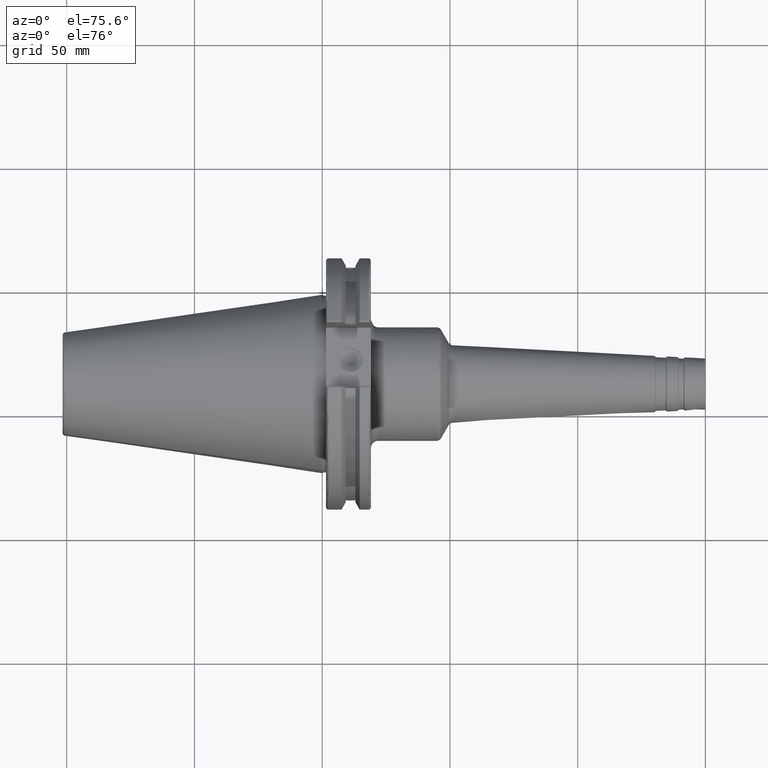
[diagram: clean part render]
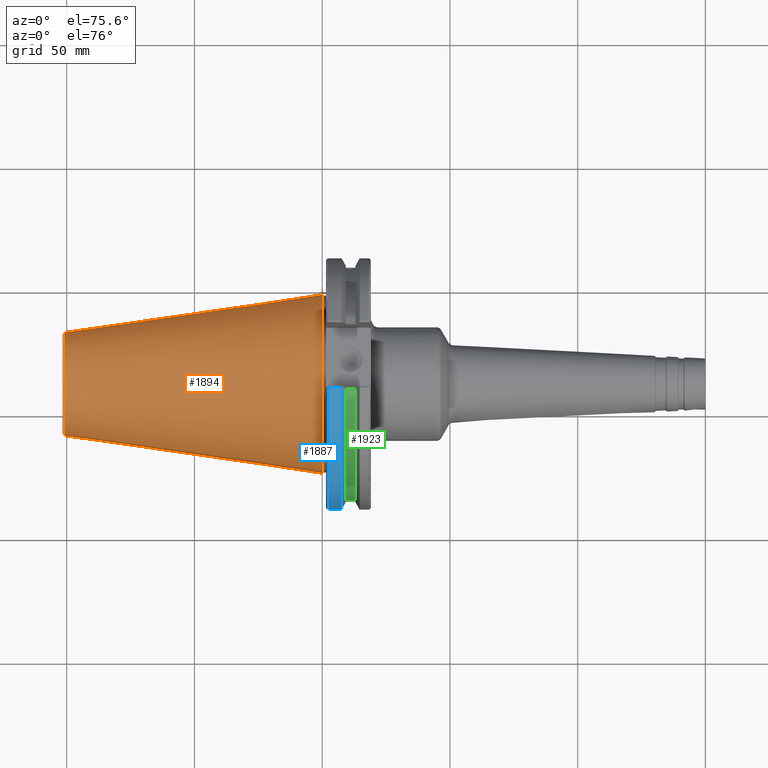
[diagram: same view with three faces highlighted in distinct colors, each labeled with its STEP entity id]
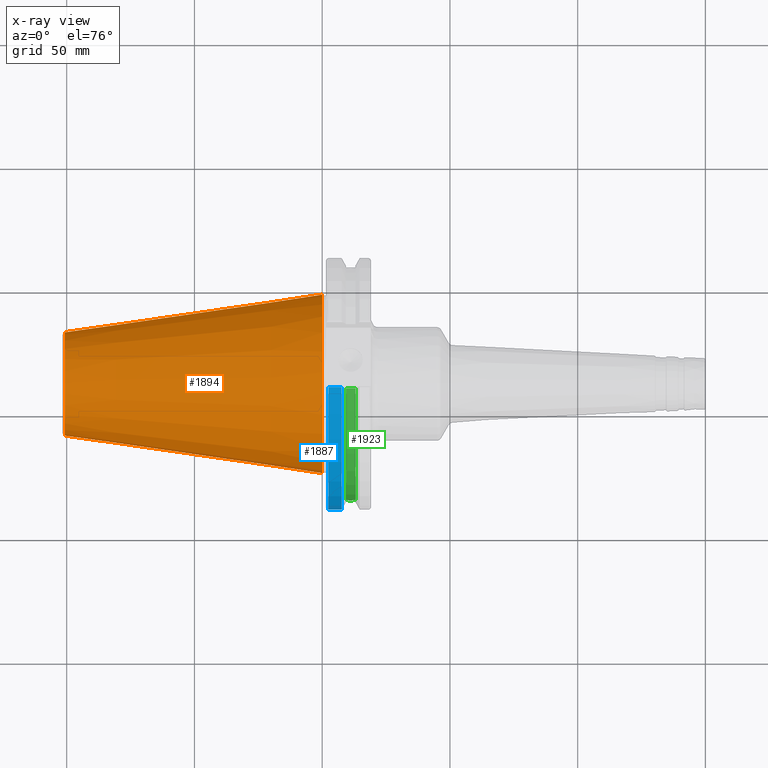
[diagram: x-ray of the same camera — body ghosted, the three highlighted faces saturated]
A machine part, auxiliary view with three faces highlighted in distinct colors.
The next image is the same camera in x-ray (body ghosted, the three faces saturated) — at least one of them is partly hidden behind the body in this view.
Their STEP definitions:

[orange] entity #1894 — the highlighted conical surface has half-angle 8.297 deg.
#165=CONICAL_SURFACE('',#2133,27.5166666666666,0.14481249823894);
#245=FACE_OUTER_BOUND('',#366,.T.);
#366=EDGE_LOOP('',(#1641,#1642,#1643,#1644,#1645));
#483=LINE('',#3727,#586);
#586=VECTOR('',#2637,27.5166666666666);
#711=CIRCLE('',#2127,20.233121911427);
#712=CIRCLE('',#2128,20.233121911427);
#716=CIRCLE('',#2134,34.925);
#906=VERTEX_POINT('',#3714);
#907=VERTEX_POINT('',#3715);
#910=VERTEX_POINT('',#3725);
#1167=EDGE_CURVE('',#906,#907,#711,.T.);
#1168=EDGE_CURVE('',#907,#906,#712,.T.);
#1172=EDGE_CURVE('',#910,#910,#716,.T.);
#1173=EDGE_CURVE('',#910,#907,#483,.T.);
#1641=ORIENTED_EDGE('',*,*,#1172,.F.);
#1642=ORIENTED_EDGE('',*,*,#1173,.T.);
#1643=ORIENTED_EDGE('',*,*,#1167,.F.);
#1644=ORIENTED_EDGE('',*,*,#1168,.F.);
#1645=ORIENTED_EDGE('',*,*,#1173,.F.);
#1894=ADVANCED_FACE('',(#245),#165,.T.);
#2127=AXIS2_PLACEMENT_3D('',#3716,#2621,#2622);
#2128=AXIS2_PLACEMENT_3D('',#3717,#2623,#2624);
#2133=AXIS2_PLACEMENT_3D('',#3724,#2633,#2634);
#2134=AXIS2_PLACEMENT_3D('',#3726,#2635,#2636);
#2621=DIRECTION('center_axis',(-1.,0.,0.));
#2622=DIRECTION('ref_axis',(0.,-1.,3.06161699786838E-17));
#2623=DIRECTION('center_axis',(-1.,0.,0.));
#2624=DIRECTION('ref_axis',(0.,-1.,3.06161699786838E-17));
#2633=DIRECTION('center_axis',(1.,0.,0.));
#2634=DIRECTION('ref_axis',(0.,1.,0.));
#2635=DIRECTION('center_axis',(1.,0.,0.));
#2636=DIRECTION('ref_axis',(0.,0.,-1.));
#2637=DIRECTION('',(-0.989532981063281,0.144306893071729,1.76724974695192E-17));
#3714=CARTESIAN_POINT('',(-100.744306893072,-2.47784279855872E-15,20.233121911427));
#3715=CARTESIAN_POINT('',(-100.744306893072,-20.233121911427,-2.47784279855872E-15));
#3716=CARTESIAN_POINT('Origin',(-100.744306893072,0.,-3.09730349819841E-15));
#3717=CARTESIAN_POINT('Origin',(-100.744306893072,0.,-3.09730349819841E-15));
#3724=CARTESIAN_POINT('Origin',(-50.8,0.,0.));
#3725=CARTESIAN_POINT('',(-8.88178419700125E-15,-34.925,-4.27707894602213E-15));
#3726=CARTESIAN_POINT('Origin',(0.,0.,0.));
#3727=CARTESIAN_POINT('',(-50.8,-27.5166666666666,-3.3698197756538E-15));

[blue] entity #1887 — the highlighted cylindrical surface (partial cylindrical patch) has radius 49.2125 mm, axis along (1, 0, 0).
#238=FACE_OUTER_BOUND('',#356,.T.);
#356=EDGE_LOOP('',(#1600,#1601,#1602,#1603));
#472=LINE('',#3653,#575);
#473=LINE('',#3659,#576);
#575=VECTOR('',#2590,10.);
#576=VECTOR('',#2593,10.);
#705=CIRCLE('',#2114,49.2125);
#707=CIRCLE('',#2118,49.2125);
#891=VERTEX_POINT('',#3631);
#892=VERTEX_POINT('',#3640);
#893=VERTEX_POINT('',#3652);
#894=VERTEX_POINT('',#3658);
#1144=EDGE_CURVE('',#891,#892,#705,.T.);
#1147=EDGE_CURVE('',#892,#893,#472,.T.);
#1149=EDGE_CURVE('',#894,#891,#473,.T.);
#1150=EDGE_CURVE('',#893,#894,#707,.T.);
#1600=ORIENTED_EDGE('',*,*,#1144,.F.);
#1601=ORIENTED_EDGE('',*,*,#1149,.F.);
#1602=ORIENTED_EDGE('',*,*,#1150,.F.);
#1603=ORIENTED_EDGE('',*,*,#1147,.F.);
#1812=CYLINDRICAL_SURFACE('',#2117,49.2125);
#1887=ADVANCED_FACE('',(#238),#1812,.T.);
#2114=AXIS2_PLACEMENT_3D('',#3641,#2584,#2585);
#2117=AXIS2_PLACEMENT_3D('',#3657,#2591,#2592);
#2118=AXIS2_PLACEMENT_3D('',#3660,#2594,#2595);
#2584=DIRECTION('center_axis',(-1.,0.,0.));
#2585=DIRECTION('ref_axis',(0.,-1.,1.60812264967664E-16));
#2590=DIRECTION('',(1.,0.,0.));
#2591=DIRECTION('center_axis',(1.,0.,0.));
#2592=DIRECTION('ref_axis',(0.,-1.,1.22464679914735E-16));
#2593=DIRECTION('',(-1.,0.,0.));
#2594=DIRECTION('center_axis',(1.,0.,0.));
#2595=DIRECTION('ref_axis',(0.,0.,-1.));
#3631=CARTESIAN_POINT('',(2.5,-13.4317035994433,-47.3440544806494));
#3640=CARTESIAN_POINT('',(2.5,-13.4317035994433,47.3440544806494));
#3641=CARTESIAN_POINT('Origin',(2.5,0.,0.));
#3652=CARTESIAN_POINT('',(7.60089096595127,-13.4317035994433,47.3440544806494));
#3653=CARTESIAN_POINT('',(4.55044548297565,-13.4317035994433,47.3440544806494));
#3657=CARTESIAN_POINT('Origin',(4.55044548297565,0.,0.));
#3658=CARTESIAN_POINT('',(7.60089096595127,-13.4317035994433,-47.3440544806494));
#3659=CARTESIAN_POINT('',(4.55044548297565,-13.4317035994433,-47.3440544806494));
#3660=CARTESIAN_POINT('Origin',(7.60089096595127,0.,0.));

[green] entity #1923 — the highlighted cylindrical surface (partial cylindrical patch) has radius 45.6435 mm, axis along (1, 0, 0).
#119=B_SPLINE_CURVE_WITH_KNOTS('',3,(#3147,#3148,#3149,#3150,#3151,#3152,
#3153,#3154,#3155,#3156,#3157,#3158,#3159,#3160),.UNSPECIFIED.,.F.,.F.,
(4,2,2,2,2,2,4),(0.40154831257669,0.47469709549563,0.553813286063442,0.632929476631253,
0.712045667199065,0.791161857766876,0.864310640685817),.UNSPECIFIED.);
#274=FACE_OUTER_BOUND('',#397,.T.);
#397=EDGE_LOOP('',(#1780,#1781,#1782,#1783));
#465=LINE('',#3609,#568);
#568=VECTOR('',#2573,10.);
#731=CIRCLE('',#2177,45.6435);
#732=CIRCLE('',#2179,45.6435);
#814=VERTEX_POINT('',#3144);
#815=VERTEX_POINT('',#3146);
#885=VERTEX_POINT('',#3606);
#886=VERTEX_POINT('',#3608);
#1038=EDGE_CURVE('',#815,#814,#119,.T.);
#1134=EDGE_CURVE('',#886,#885,#465,.T.);
#1212=EDGE_CURVE('',#885,#815,#731,.T.);
#1213=EDGE_CURVE('',#886,#814,#732,.T.);
#1780=ORIENTED_EDGE('',*,*,#1038,.T.);
#1781=ORIENTED_EDGE('',*,*,#1213,.F.);
#1782=ORIENTED_EDGE('',*,*,#1134,.T.);
#1783=ORIENTED_EDGE('',*,*,#1212,.T.);
#1819=CYLINDRICAL_SURFACE('',#2178,45.6435);
#1923=ADVANCED_FACE('',(#274),#1819,.T.);
#2177=AXIS2_PLACEMENT_3D('',#3817,#2742,#2743);
#2178=AXIS2_PLACEMENT_3D('',#3818,#2744,#2745);
#2179=AXIS2_PLACEMENT_3D('',#3819,#2746,#2747);
#2573=DIRECTION('',(-1.,0.,0.));
#2742=DIRECTION('center_axis',(1.,0.,0.));
#2743=DIRECTION('ref_axis',(0.,0.,-1.));
#2744=DIRECTION('center_axis',(1.,0.,0.));
#2745=DIRECTION('ref_axis',(0.,-0.888619069115281,0.458645996390125));
#2746=DIRECTION('center_axis',(1.,0.,0.));
#2747=DIRECTION('ref_axis',(0.,0.,-1.));
#3144=CARTESIAN_POINT('',(13.042,-43.1779814500336,-14.7983448449669));
#3146=CARTESIAN_POINT('',(9.21200000000001,-43.1779814500336,-14.7983448449669));
#3147=CARTESIAN_POINT('Ctrl Pts',(9.21199999999999,-43.1779814500335,-14.7983448449669));
#3148=CARTESIAN_POINT('Ctrl Pts',(9.31822177598176,-43.2545173750974,-14.5750315766731));
#3149=CARTESIAN_POINT('Ctrl Pts',(9.46970807557665,-43.3223492818373,-14.3712521044637));
#3150=CARTESIAN_POINT('Ctrl Pts',(9.82850503400179,-43.4340904392251,-14.0300988117073));
#3151=CARTESIAN_POINT('Ctrl Pts',(10.0646203280543,-43.4832903960863,-13.8760243976176));
#3152=CARTESIAN_POINT('Ctrl Pts',(10.5820059167872,-43.54802519266,-13.6715068146718));
#3153=CARTESIAN_POINT('Ctrl Pts',(10.863279364774,-43.5636826100883,-13.6211104428929));
#3154=CARTESIAN_POINT('Ctrl Pts',(11.390720635226,-43.5636826100883,-13.6211104428929));
#3155=CARTESIAN_POINT('Ctrl Pts',(11.6719940832128,-43.54802519266,-13.6715068146718));
#3156=CARTESIAN_POINT('Ctrl Pts',(12.1893796719457,-43.4832903960863,-13.8760243976176));
#3157=CARTESIAN_POINT('Ctrl Pts',(12.4254949659982,-43.4340904392251,-14.0300988117073));
#3158=CARTESIAN_POINT('Ctrl Pts',(12.7842919244233,-43.3223492818373,-14.3712521044637));
#3159=CARTESIAN_POINT('Ctrl Pts',(12.9357782240182,-43.2545173750974,-14.5750315766731));
#3160=CARTESIAN_POINT('Ctrl Pts',(13.042,-43.1779814500335,-14.7983448449669));
#3606=CARTESIAN_POINT('',(9.21200000000001,-12.95,43.7678716897452));
#3608=CARTESIAN_POINT('',(13.042,-12.95,43.7678716897452));
#3609=CARTESIAN_POINT('',(11.127,-12.95,43.7678716897452));
#3817=CARTESIAN_POINT('Origin',(9.21200000000001,0.,0.));
#3818=CARTESIAN_POINT('Origin',(11.127,0.,0.));
#3819=CARTESIAN_POINT('Origin',(13.042,0.,0.));